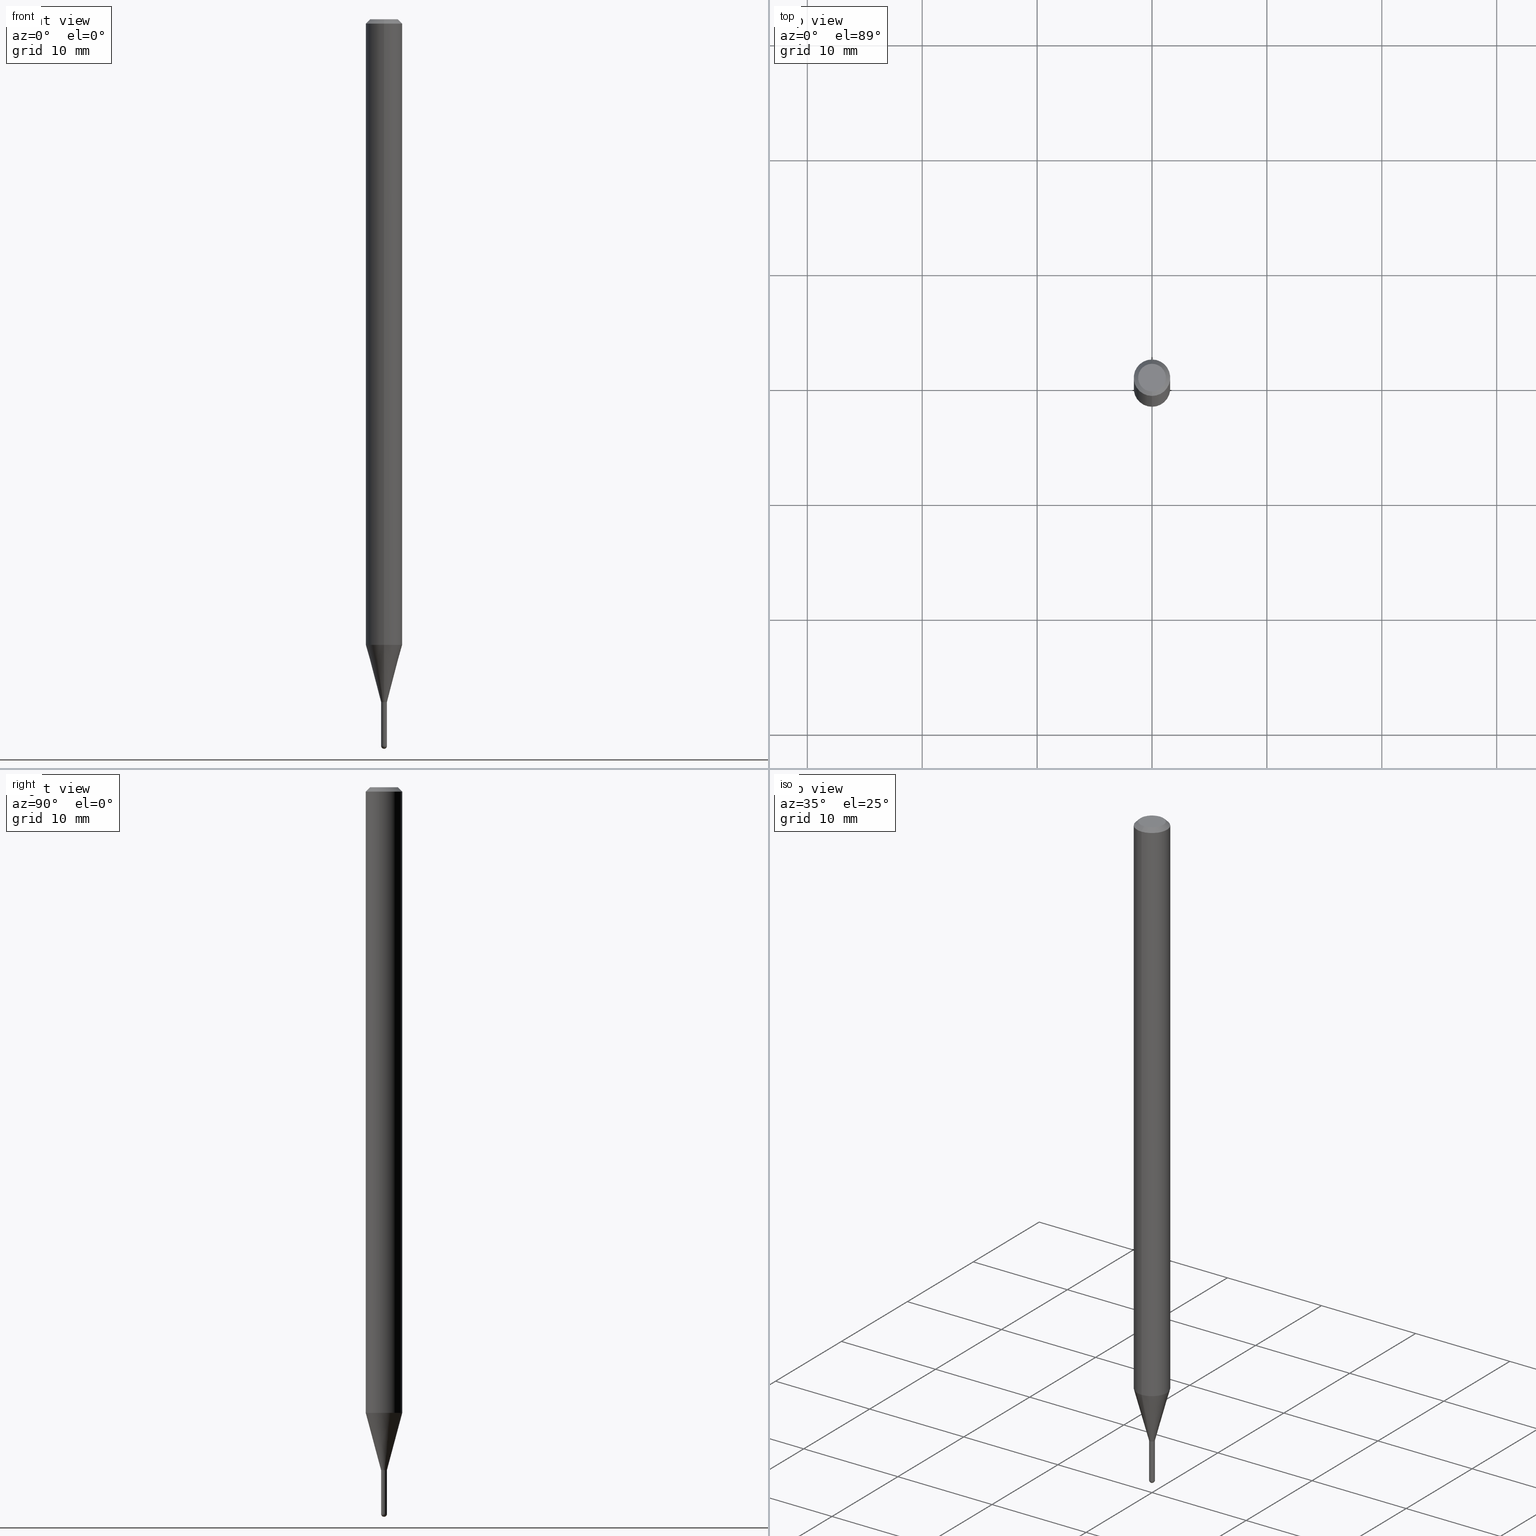
[diagram: canonical four-view strip — front | top / right | iso, engineering-drawing reading convention]
A machine part, canonical four-view strip (front | top / right | iso — engineering-drawing reading convention). The complete STEP part file that produces these views, byte-faithful:
ISO-10303-21;
HEADER;
FILE_DESCRIPTION (( 'STEP AP203' ),
    '1' );
FILE_NAME ('04484.STEP',
    '2024-03-08T20:00:20',
    ( '' ),
    ( '' ),
    'SwSTEP 2.0',
    'SolidWorks 2023',
    '' );
FILE_SCHEMA (( 'CONFIG_CONTROL_DESIGN' ));
ENDSEC;

DATA;
#1 = CARTESIAN_POINT ( 'NONE',  ( 5.722546731419643445E-29, -8.169851918247868605E-15, -2.340000000000000302 ) ) ;
#2 = EDGE_CURVE ( 'NONE', #56, #166, #46, .T. ) ;
#3 = PERSON_AND_ORGANIZATION_ROLE ( 'design_owner' ) ;
#4 = AXIS2_PLACEMENT_3D ( 'NONE', #208, #135, #285 ) ;
#5 = ORGANIZATION ( 'UNSPECIFIED', 'UNSPECIFIED', '' ) ;
#6 = ORIENTED_EDGE ( 'NONE', *, *, #201, .F. ) ;
#7 = DIRECTION ( 'NONE',  ( -2.445532791204975206E-29, 3.491389708652934978E-15, 1.000000000000000000 ) ) ;
#8 = APPROVAL_ROLE ( '' ) ;
#9 = DIRECTION ( 'NONE',  ( -2.445532791204975206E-29, 3.491389708652934978E-15, 1.000000000000000000 ) ) ;
#10 = EDGE_CURVE ( 'NONE', #462, #264, #302, .T. ) ;
#11 = ORIENTED_EDGE ( 'NONE', *, *, #429, .F. ) ;
#12 = EDGE_LOOP ( 'NONE', ( #299, #404, #446, #424 ) ) ;
#13 = ORIENTED_EDGE ( 'NONE', *, *, #95, .T. ) ;
#14 = CALENDAR_DATE ( 2024, 8, 3 ) ;
#15 = EDGE_LOOP ( 'NONE', ( #163, #281, #64, #449 ) ) ;
#16 = CIRCLE ( 'NONE', #311, 0.01000000000000019623 ) ;
#17 = AXIS2_PLACEMENT_3D ( 'NONE', #139, #171, #286 ) ;
#18 = PERSON_AND_ORGANIZATION ( #470, #5 ) ;
#19 = ORIENTED_EDGE ( 'NONE', *, *, #201, .T. ) ;
#20 = DIRECTION ( 'NONE',  ( -2.445532791204975486E-29, 3.491389708652934978E-15, 1.000000000000000000 ) ) ;
#21 = ORIENTED_EDGE ( 'NONE', *, *, #27, .T. ) ;
#22 = CARTESIAN_POINT ( 'NONE',  ( 0.01000000000000000021, -6.982962677686265724E-17, 4.876176775795935968E-31 ) ) ;
#23 = EDGE_CURVE ( 'NONE', #94, #158, #123, .T. ) ;
#24 = FACE_OUTER_BOUND ( 'NONE', #493, .T. ) ;
#25 = CARTESIAN_POINT ( 'NONE',  ( 4.440892098501148782E-16, 0.06249999999999250599, -2.144067332602639375 ) ) ;
#26 = ORIENTED_EDGE ( 'NONE', *, *, #277, .F. ) ;
#27 = EDGE_CURVE ( 'NONE', #339, #264, #116, .T. ) ;
#28 = LINE ( 'NONE', #115, #121 ) ;
#29 = DIRECTION ( 'NONE',  ( 1.000000000000000000, -6.982962677686235945E-15, 0.000000000000000000 ) ) ;
#30 = AXIS2_PLACEMENT_3D ( 'NONE', #1, #7, #259 ) ;
#31 = DIRECTION ( 'NONE',  ( -2.445532791204975486E-29, 3.491389708652934978E-15, 1.000000000000000000 ) ) ;
#32 = EDGE_CURVE ( 'NONE', #108, #483, #168, .T. ) ;
#33 = DIRECTION ( 'NONE',  ( -1.807323732225378654E-15, -0.2588190451025251249, 0.9659258262890670910 ) ) ;
#34 = ORIENTED_EDGE ( 'NONE', *, *, #505, .T. ) ;
#35 = EDGE_LOOP ( 'NONE', ( #265, #368, #455, #375 ) ) ;
#36 = CIRCLE ( 'NONE', #207, 0.009499999999999998029 ) ;
#37 = CIRCLE ( 'NONE', #162, 0.06250000000000000000 ) ;
#38 = EDGE_CURVE ( 'NONE', #94, #148, #120, .T. ) ;
#39 = DIRECTION ( 'NONE',  ( -6.982962677686265922E-15, -1.000000000000000000, 3.491389708652935372E-15 ) ) ;
#40 = DIRECTION ( 'NONE',  ( -6.982962677686266711E-15, -1.000000000000000000, 3.491389708652935372E-15 ) ) ;
#41 = FACE_OUTER_BOUND ( 'NONE', #384, .T. ) ;
#42 = AXIS2_PLACEMENT_3D ( 'NONE', #249, #176, #431 ) ;
#43 = AXIS2_PLACEMENT_3D ( 'NONE', #283, #365, #427 ) ;
#44 = CARTESIAN_POINT ( 'NONE',  ( -4.364351673553393088E-16, -0.06250000000000749401, -2.144067332602638931 ) ) ;
#45 = ADVANCED_FACE ( 'NONE', ( #202 ), #447, .T. ) ;
#46 = CIRCLE ( 'NONE', #238, 0.01000000000000008521 ) ;
#47 = DIRECTION ( 'NONE',  ( 4.937700262164548042E-15, 0.7071067811865451302, -0.7071067811865499042 ) ) ;
#48 = LINE ( 'NONE', #467, #160 ) ;
#49 = PLANE ( 'NONE',  #30 ) ;
#50 = CARTESIAN_POINT ( 'NONE',  ( -3.773273898774340269E-16, -0.04749999999999999362, 1.003364246745831889E-16 ) ) ;
#51 = ORIENTED_EDGE ( 'NONE', *, *, #85, .T. ) ;
#52 = DIRECTION ( 'NONE',  ( -6.982962677686266711E-15, -1.000000000000000000, 3.491389708652935372E-15 ) ) ;
#53 = CARTESIAN_POINT ( 'NONE',  ( -6.633814543796229745E-17, -0.009500000000008168577, -2.339999999999999858 ) ) ;
#54 = PERSON_AND_ORGANIZATION ( #470, #5 ) ;
#55 = CIRCLE ( 'NONE', #131, 0.01000000000000000021 ) ;
#56 = VERTEX_POINT ( 'NONE', #287 ) ;
#57 = EDGE_LOOP ( 'NONE', ( #444, #122, #506, #376 ) ) ;
#58 = EDGE_CURVE ( 'NONE', #181, #359, #143, .T. ) ;
#59 = CARTESIAN_POINT ( 'NONE',  ( 5.722546731419643445E-29, -8.169851918247868605E-15, -2.340000000000000302 ) ) ;
#60 = DIRECTION ( 'NONE',  ( -6.982962677686265133E-15, -1.000000000000000000, 0.000000000000000000 ) ) ;
#61 = PRODUCT_DEFINITION_SHAPE ( 'NONE', 'NONE',  #482 ) ;
#62 = DATE_AND_TIME ( #14, #251 ) ;
#63 = ORIENTED_EDGE ( 'NONE', *, *, #361, .T. ) ;
#64 = ORIENTED_EDGE ( 'NONE', *, *, #190, .T. ) ;
#65 = CONICAL_SURFACE ( 'NONE', #475, 0.06250000000000000000, 0.7853981633974483900 ) ;
#66 = CC_DESIGN_PERSON_AND_ORGANIZATION_ASSIGNMENT ( #443, #93, ( #469 ) ) ;
#67 = DIRECTION ( 'NONE',  ( 1.000000000000000000, -6.982962677686235945E-15, 0.000000000000000000 ) ) ;
#68 = MANIFOLD_SOLID_BREP ( 'Body-Move/Copy2[2]', #99 ) ;
#69 = DIRECTION ( 'NONE',  ( 2.445532791204975486E-29, -3.491389708652934978E-15, -1.000000000000000000 ) ) ;
#70 = PLANE ( 'NONE',  #87 ) ;
#71 = CARTESIAN_POINT ( 'NONE',  ( 6.089217327400989947E-29, -8.693788533719431716E-15, -2.489999999999999769 ) ) ;
#72 = VECTOR ( 'NONE', #507, 39.37007874015748143 ) ;
#73 =( GEOMETRIC_REPRESENTATION_CONTEXT ( 3 ) GLOBAL_UNCERTAINTY_ASSIGNED_CONTEXT ( ( #344 ) ) GLOBAL_UNIT_ASSIGNED_CONTEXT ( ( #240, #243, #200 ) ) REPRESENTATION_CONTEXT ( 'NONE', 'WORKASPACE' ) );
#74 = AXIS2_PLACEMENT_3D ( 'NONE', #77, #466, #126 ) ;
#75 = DIRECTION ( 'NONE',  ( 1.000000000000000000, -6.982962677686265922E-15, 4.883557194083112340E-29 ) ) ;
#76 = CARTESIAN_POINT ( 'NONE',  ( 5.722546731419642324E-29, -8.169851918247867028E-15, -2.339999999999999858 ) ) ;
#77 = CARTESIAN_POINT ( 'NONE',  ( 3.668299186807479747E-31, -5.237084562979425566E-17, -0.01500000000000006710 ) ) ;
#78 = CARTESIAN_POINT ( 'NONE',  ( 0.000000000000000000, 0.000000000000000000, 0.000000000000000000 ) ) ;
#79 = CONICAL_SURFACE ( 'NONE', #362, 0.009499999999999998029, 0.7853981633980202659 ) ;
#80 = CARTESIAN_POINT ( 'NONE',  ( 0.01000000000000000021, -8.239895959669823433E-15, -2.340000000000000302 ) ) ;
#81 = FACE_OUTER_BOUND ( 'NONE', #157, .T. ) ;
#82 = EDGE_CURVE ( 'NONE', #147, #223, #380, .T. ) ;
#83 = ORIENTED_EDGE ( 'NONE', *, *, #429, .T. ) ;
#84 = DIRECTION ( 'NONE',  ( -4.937700262167370586E-15, -0.7071067811869493624, 0.7071067811861454500 ) ) ;
#85 = EDGE_CURVE ( 'NONE', #226, #148, #340, .T. ) ;
#86 = DIRECTION ( 'NONE',  ( -6.982962677686265922E-15, -1.000000000000000000, 3.483106191921935554E-15 ) ) ;
#87 = AXIS2_PLACEMENT_3D ( 'NONE', #203, #235, #504 ) ;
#88 = CLOSED_SHELL ( 'NONE', ( #210, #422, #379, #178, #186 ) ) ;
#89 = FACE_OUTER_BOUND ( 'NONE', #35, .T. ) ;
#90 = CALENDAR_DATE ( 2024, 8, 3 ) ;
#91 = FACE_OUTER_BOUND ( 'NONE', #12, .T. ) ;
#92 = CARTESIAN_POINT ( 'NONE',  ( 6.089217327400989947E-29, -8.693788533719431716E-15, -2.489999999999999769 ) ) ;
#93 = PERSON_AND_ORGANIZATION_ROLE ( 'design_supplier' ) ;
#94 = VERTEX_POINT ( 'NONE', #289 ) ;
#95 = EDGE_CURVE ( 'NONE', #339, #489, #229, .T. ) ;
#96 = LINE ( 'NONE', #372, #318 ) ;
#97 = FACE_OUTER_BOUND ( 'NONE', #15, .T. ) ;
#98 = EDGE_LOOP ( 'NONE', ( #165, #63, #337, #310, #83 ) ) ;
#99 = CLOSED_SHELL ( 'NONE', ( #156, #373, #335, #474, #45, #133, #490, #351, #512, #104, #222, #307 ) ) ;
#100 = PERSON_AND_ORGANIZATION_ROLE ( 'creator' ) ;
#101 = FACE_OUTER_BOUND ( 'NONE', #153, .T. ) ;
#102 = ORIENTED_EDGE ( 'NONE', *, *, #216, .F. ) ;
#103 = APPROVAL_DATE_TIME ( #62, #245 ) ;
#104 = ADVANCED_FACE ( 'NONE', ( #401 ), #49, .F. ) ;
#105 = CARTESIAN_POINT ( 'NONE',  ( 3.840629472727447874E-16, 0.04749999999999999362, -2.313455976474456035E-16 ) ) ;
#106 = CARTESIAN_POINT ( 'NONE',  ( -0.01000000000000000021, -8.360873159730185055E-15, -2.340000000000000302 ) ) ;
#107 = ORIENTED_EDGE ( 'NONE', *, *, #326, .F. ) ;
#108 = VERTEX_POINT ( 'NONE', #179 ) ;
#109 = PRODUCT ( '04484', '04484', '', ( #225 ) ) ;
#110 = AXIS2_PLACEMENT_3D ( 'NONE', #76, #393, #159 ) ;
#111 = CC_DESIGN_APPROVAL ( #245, ( #469 ) ) ;
#112 = ORIENTED_EDGE ( 'NONE', *, *, #361, .F. ) ;
#113 = DIRECTION ( 'NONE',  ( -6.982962677686265922E-15, -1.000000000000000000, 3.491389708652934978E-15 ) ) ;
#114 = ORIENTED_EDGE ( 'NONE', *, *, #423, .T. ) ;
#115 = CARTESIAN_POINT ( 'NONE',  ( -4.364351673553916201E-16, -0.06250000000000000000, 2.182118567908084361E-16 ) ) ;
#116 = LINE ( 'NONE', #198, #189 ) ;
#117 = CC_DESIGN_PERSON_AND_ORGANIZATION_ASSIGNMENT ( #381, #100, ( #482 ) ) ;
#118 = CYLINDRICAL_SURFACE ( 'NONE', #263, 0.06250000000000000000 ) ;
#119 = CARTESIAN_POINT ( 'NONE',  ( 5.722546731419642324E-29, -8.169851918247867028E-15, -2.339999999999999858 ) ) ;
#120 = LINE ( 'NONE', #390, #231 ) ;
#121 = VECTOR ( 'NONE', #199, 39.37007874015748143 ) ;
#122 = ORIENTED_EDGE ( 'NONE', *, *, #216, .T. ) ;
#123 = CIRCLE ( 'NONE', #400, 0.009999999999999649794 ) ;
#124 = ORIENTED_EDGE ( 'NONE', *, *, #38, .F. ) ;
#125 = EDGE_CURVE ( 'NONE', #166, #491, #55, .T. ) ;
#126 = DIRECTION ( 'NONE',  ( -6.982962677686265922E-15, -1.000000000000000000, 3.483106191921935554E-15 ) ) ;
#127 = DIRECTION ( 'NONE',  ( -2.445532791204975486E-29, 3.491389708652934978E-15, 1.000000000000000000 ) ) ;
#128 = DIRECTION ( 'NONE',  ( -2.445532791204975486E-29, 3.491389708652934978E-15, 1.000000000000000000 ) ) ;
#129 = APPROVAL_DATE_TIME ( #273, #347 ) ;
#130 = CARTESIAN_POINT ( 'NONE',  ( 6.089217327400989947E-29, -8.693788533719431716E-15, -2.489999999999999769 ) ) ;
#131 = AXIS2_PLACEMENT_3D ( 'NONE', #130, #387, #275 ) ;
#132 = CARTESIAN_POINT ( 'NONE',  ( 2.575717417130899915E-16, 0.009999999999991479246, -2.340000000000000302 ) ) ;
#133 = ADVANCED_FACE ( 'NONE', ( #175 ), #500, .T. ) ;
#134 = DIRECTION ( 'NONE',  ( -1.000000000000000000, 7.105427357601001070E-15, -4.926315508542082329E-29 ) ) ;
#135 = DIRECTION ( 'NONE',  ( 2.438088387897960049E-29, -3.491481338843145188E-15, -1.000000000000000000 ) ) ;
#136 = DIRECTION ( 'NONE',  ( -2.445532791204975486E-29, 3.491389708652934978E-15, 1.000000000000000000 ) ) ;
#137 = ORIENTED_EDGE ( 'NONE', *, *, #499, .T. ) ;
#138 = EDGE_CURVE ( 'NONE', #56, #108, #177, .T. ) ;
#139 = CARTESIAN_POINT ( 'NONE',  ( 6.089217327400989947E-29, -8.693788533719431716E-15, -2.489999999999999769 ) ) ;
#140 = LINE ( 'NONE', #448, #458 ) ;
#141 = CIRCLE ( 'NONE', #110, 0.009499999999999998029 ) ;
#142 = DIRECTION ( 'NONE',  ( -6.982962677686265922E-15, -1.000000000000000000, 0.000000000000000000 ) ) ;
#143 = LINE ( 'NONE', #215, #436 ) ;
#144 = APPROVAL_STATUS ( 'not_yet_approved' ) ;
#145 = ORIENTED_EDGE ( 'NONE', *, *, #461, .T. ) ;
#146 = DIRECTION ( 'NONE',  ( 5.024295867790934632E-15, 0.7071067811869542474, 0.7071067811861405650 ) ) ;
#147 = VERTEX_POINT ( 'NONE', #80 ) ;
#148 = VERTEX_POINT ( 'NONE', #44 ) ;
#149 = DIRECTION ( 'NONE',  ( 0.000000000000000000, 0.000000000000000000, 1.000000000000000000 ) ) ;
#150 = ORIENTED_EDGE ( 'NONE', *, *, #32, .T. ) ;
#151 = LINE ( 'NONE', #22, #250 ) ;
#152 = EDGE_CURVE ( 'NONE', #158, #226, #282, .T. ) ;
#153 = EDGE_LOOP ( 'NONE', ( #102, #185, #473, #306 ) ) ;
#154 = CALENDAR_DATE ( 2024, 8, 3 ) ;
#155 = ORIENTED_EDGE ( 'NONE', *, *, #423, .F. ) ;
#156 = ADVANCED_FACE ( 'NONE', ( #91 ), #430, .F. ) ;
#157 = EDGE_LOOP ( 'NONE', ( #378, #34 ) ) ;
#158 = VERTEX_POINT ( 'NONE', #132 ) ;
#159 = DIRECTION ( 'NONE',  ( -6.982962677686265922E-15, -1.000000000000000000, 0.000000000000000000 ) ) ;
#160 = VECTOR ( 'NONE', #47, 39.37007874015748143 ) ;
#161 = CARTESIAN_POINT ( 'NONE',  ( -4.364351673553912750E-16, -0.06250000000000005551, -0.01499999999999984852 ) ) ;
#162 = AXIS2_PLACEMENT_3D ( 'NONE', #391, #20, #420 ) ;
#163 = ORIENTED_EDGE ( 'NONE', *, *, #314, .F. ) ;
#164 = CC_DESIGN_PERSON_AND_ORGANIZATION_ASSIGNMENT ( #267, #480, ( #469 ) ) ;
#165 = ORIENTED_EDGE ( 'NONE', *, *, #125, .T. ) ;
#166 = VERTEX_POINT ( 'NONE', #246 ) ;
#167 = ORIENTED_EDGE ( 'NONE', *, *, #95, .F. ) ;
#168 = CIRCLE ( 'NONE', #438, 0.01000000000000000021 ) ;
#169 = DIRECTION ( 'NONE',  ( 6.982962677686265133E-15, 1.000000000000000000, 0.000000000000000000 ) ) ;
#170 = CC_DESIGN_DATE_AND_TIME_ASSIGNMENT ( #261, #453, ( #482 ) ) ;
#171 = DIRECTION ( 'NONE',  ( -2.445468806185136597E-29, 3.491481338843145583E-15, 1.000000000000000000 ) ) ;
#172 = CARTESIAN_POINT ( 'NONE',  ( 3.668299186807479747E-31, -5.237084562979425566E-17, -0.01500000000000006710 ) ) ;
#173 = CIRCLE ( 'NONE', #477, 0.009999999999999649794 ) ;
#174 = CC_DESIGN_SECURITY_CLASSIFICATION ( #479, ( #469 ) ) ;
#175 = FACE_OUTER_BOUND ( 'NONE', #457, .T. ) ;
#176 = DIRECTION ( 'NONE',  ( -2.445532791204975486E-29, 3.491389708652934978E-15, 1.000000000000000000 ) ) ;
#177 = CIRCLE ( 'NONE', #349, 0.01000000000000008521 ) ;
#178 = ADVANCED_FACE ( 'NONE', ( #41 ), #219, .T. ) ;
#179 = CARTESIAN_POINT ( 'NONE',  ( -7.105427357594942569E-17, -0.01000000000000873801, -2.489999999999999769 ) ) ;
#180 = CARTESIAN_POINT ( 'NONE',  ( 4.440892098500625669E-16, 0.06250000000000000000, -2.182118567908084361E-16 ) ) ;
#181 = VERTEX_POINT ( 'NONE', #53 ) ;
#182 = ORIENTED_EDGE ( 'NONE', *, *, #38, .T. ) ;
#183 = APPLICATION_PROTOCOL_DEFINITION ( 'international standard', 'config_control_design', 1994, #295 ) ;
#184 = CARTESIAN_POINT ( 'NONE',  ( 7.105427357606838345E-17, 0.009999999999991994459, -2.339500000000000135 ) ) ;
#185 = ORIENTED_EDGE ( 'NONE', *, *, #345, .T. ) ;
#186 = ADVANCED_FACE ( 'NONE', ( #392 ), #509, .T. ) ;
#187 = AXIS2_PLACEMENT_3D ( 'NONE', #78, #209, #399 ) ;
#188 = APPROVAL_PERSON_ORGANIZATION ( #294, #245, #377 ) ;
#189 = VECTOR ( 'NONE', #353, 39.37007874015748143 ) ;
#190 = EDGE_CURVE ( 'NONE', #94, #359, #140, .T. ) ;
#191 = EDGE_LOOP ( 'NONE', ( #112, #19, #150, #498, #346 ) ) ;
#192 = PERSON_AND_ORGANIZATION ( #470, #5 ) ;
#193 = ORIENTED_EDGE ( 'NONE', *, *, #125, .F. ) ;
#194 = DIRECTION ( 'NONE',  ( -2.445532791204975486E-29, 3.491389708652934978E-15, 1.000000000000000000 ) ) ;
#195 = AXIS2_PLACEMENT_3D ( 'NONE', #440, #332, #481 ) ;
#196 = DESIGN_CONTEXT ( 'detailed design', #295, 'design' ) ;
#197 = AXIS2_PLACEMENT_3D ( 'NONE', #334, #149, #257 ) ;
#198 = CARTESIAN_POINT ( 'NONE',  ( -4.287811248607203282E-16, -0.06250000000000005551, -0.01499999999999984852 ) ) ;
#199 = DIRECTION ( 'NONE',  ( -2.445532791204975206E-29, 3.491389708652934978E-15, 1.000000000000000000 ) ) ;
#200 =( NAMED_UNIT ( * ) SI_UNIT ( $, .STERADIAN. ) SOLID_ANGLE_UNIT ( ) );
#201 = EDGE_CURVE ( 'NONE', #491, #108, #415, .T. ) ;
#202 = FACE_OUTER_BOUND ( 'NONE', #313, .T. ) ;
#203 = CARTESIAN_POINT ( 'NONE',  ( 3.316907271900976096E-16, 0.04749999999999999362, -1.985933044042299937E-16 ) ) ;
#204 = EDGE_CURVE ( 'NONE', #483, #147, #151, .T. ) ;
#205 = EDGE_LOOP ( 'NONE', ( #167, #21, #145, #503 ) ) ;
#206 = FACE_OUTER_BOUND ( 'NONE', #57, .T. ) ;
#207 = AXIS2_PLACEMENT_3D ( 'NONE', #298, #445, #488 ) ;
#208 = CARTESIAN_POINT ( 'NONE',  ( 6.982962677691987431E-17, 0.009999999999991829661, -2.340000000000000302 ) ) ;
#209 = DIRECTION ( 'NONE',  ( -2.445468806185136597E-29, 3.491481338843145583E-15, 1.000000000000000000 ) ) ;
#210 = ADVANCED_FACE ( 'NONE', ( #233 ), #309, .T. ) ;
#211 = DIRECTION ( 'NONE',  ( -6.982962677686265922E-15, -1.000000000000000000, 0.000000000000000000 ) ) ;
#212 = DIRECTION ( 'NONE',  ( -2.445468806185136597E-29, 3.491481338843145583E-15, 1.000000000000000000 ) ) ;
#213 = DIRECTION ( 'NONE',  ( -2.445532791204975206E-29, 3.491389708652934978E-15, 1.000000000000000000 ) ) ;
#214 = FACE_OUTER_BOUND ( 'NONE', #228, .T. ) ;
#215 = CARTESIAN_POINT ( 'NONE',  ( -6.633814543796229745E-17, -0.009500000000008168577, -2.339999999999999858 ) ) ;
#216 = EDGE_CURVE ( 'NONE', #296, #258, #329, .T. ) ;
#217 = DATE_TIME_ROLE ( 'classification_date' ) ;
#218 = ORIENTED_EDGE ( 'NONE', *, *, #152, .T. ) ;
#219 = SPHERICAL_SURFACE ( 'NONE', #330, 0.01000000000000008521 ) ;
#220 = VECTOR ( 'NONE', #441, 39.37007874015748143 ) ;
#221 = ORIENTED_EDGE ( 'NONE', *, *, #32, .F. ) ;
#222 = ADVANCED_FACE ( 'NONE', ( #101 ), #369, .T. ) ;
#223 = VERTEX_POINT ( 'NONE', #106 ) ;
#224 = DIRECTION ( 'NONE',  ( -2.445468806185136597E-29, 3.491481338843145583E-15, 1.000000000000000000 ) ) ;
#225 = MECHANICAL_CONTEXT ( 'NONE', #280, 'mechanical' ) ;
#226 = VERTEX_POINT ( 'NONE', #25 ) ;
#227 = EDGE_LOOP ( 'NONE', ( #333, #155, #269, #409 ) ) ;
#228 = EDGE_LOOP ( 'NONE', ( #383, #234, #6, #193 ) ) ;
#229 = CIRCLE ( 'NONE', #270, 0.04749999999999999362 ) ;
#230 = CC_DESIGN_APPROVAL ( #347, ( #479 ) ) ;
#231 = VECTOR ( 'NONE', #33, 39.37007874015748854 ) ;
#232 = DIRECTION ( 'NONE',  ( -2.445532791204975486E-29, 3.491389708652934978E-15, 1.000000000000000000 ) ) ;
#233 = FACE_OUTER_BOUND ( 'NONE', #98, .T. ) ;
#234 = ORIENTED_EDGE ( 'NONE', *, *, #138, .T. ) ;
#235 = DIRECTION ( 'NONE',  ( 2.445532791204975206E-29, -3.491389708652934978E-15, -1.000000000000000000 ) ) ;
#236 = LOCAL_TIME ( 15, 0, 20.00000000000000000, #297 ) ;
#237 = LINE ( 'NONE', #463, #72 ) ;
#238 = AXIS2_PLACEMENT_3D ( 'NONE', #388, #75, #169 ) ;
#239 = EDGE_CURVE ( 'NONE', #258, #359, #16, .T. ) ;
#240 =( CONVERSION_BASED_UNIT ( 'INCH', #248 ) LENGTH_UNIT ( ) NAMED_UNIT ( #417 ) );
#241 = VECTOR ( 'NONE', #408, 39.37007874015748143 ) ;
#242 = CARTESIAN_POINT ( 'NONE',  ( 5.722546731419643445E-29, -8.169851918247868605E-15, -2.340000000000000302 ) ) ;
#243 =( NAMED_UNIT ( * ) PLANE_ANGLE_UNIT ( ) SI_UNIT ( $, .RADIAN. ) );
#244 = DIRECTION ( 'NONE',  ( -2.445532791204975486E-29, 3.491389708652934978E-15, 1.000000000000000000 ) ) ;
#245 = APPROVAL ( #144, 'UNSPECIFIED' ) ;
#246 = CARTESIAN_POINT ( 'NONE',  ( 6.982962677692383094E-17, 0.009999999999991347407, -2.489999999999999769 ) ) ;
#247 = DIRECTION ( 'NONE',  ( -1.000000000000000000, 6.982962677686265922E-15, -4.883557194083113462E-29 ) ) ;
#248 = LENGTH_MEASURE_WITH_UNIT ( LENGTH_MEASURE( 0.02539999999999999897 ), #305 );
#249 = CARTESIAN_POINT ( 'NONE',  ( 5.722546731419643445E-29, -8.169851918247868605E-15, -2.340000000000000302 ) ) ;
#250 = VECTOR ( 'NONE', #352, 39.37007874015748143 ) ;
#251 = LOCAL_TIME ( 15, 0, 20.00000000000000000, #291 ) ;
#252 = APPLICATION_PROTOCOL_DEFINITION ( 'international standard', 'config_control_design', 1994, #280 ) ;
#253 = CARTESIAN_POINT ( 'NONE',  ( 3.668299186807479747E-31, -5.237084562979425566E-17, -0.01500000000000006710 ) ) ;
#254 = DIRECTION ( 'NONE',  ( -6.982962677686265922E-15, -1.000000000000000000, 3.491389708652934978E-15 ) ) ;
#255 = CYLINDRICAL_SURFACE ( 'NONE', #511, 0.06250000000000000000 ) ;
#256 = DIRECTION ( 'NONE',  ( -2.445532791204975486E-29, 3.491389708652934978E-15, 1.000000000000000000 ) ) ;
#257 = DIRECTION ( 'NONE',  ( 1.000000000000000000, 0.000000000000000000, 0.000000000000000000 ) ) ;
#258 = VERTEX_POINT ( 'NONE', #184 ) ;
#259 = DIRECTION ( 'NONE',  ( -6.982962677686265922E-15, -1.000000000000000000, 3.491389708652934978E-15 ) ) ;
#260 = DIRECTION ( 'NONE',  ( -2.445468806185136597E-29, 3.491481338843145583E-15, 1.000000000000000000 ) ) ;
#261 = DATE_AND_TIME ( #154, #322 ) ;
#262 = AXIS2_PLACEMENT_3D ( 'NONE', #426, #244, #39 ) ;
#263 = AXIS2_PLACEMENT_3D ( 'NONE', #274, #31, #113 ) ;
#264 = VERTEX_POINT ( 'NONE', #161 ) ;
#265 = ORIENTED_EDGE ( 'NONE', *, *, #508, .T. ) ;
#266 = COORDINATED_UNIVERSAL_TIME_OFFSET ( 5, 0, .BEHIND. ) ;
#267 = PERSON_AND_ORGANIZATION ( #470, #5 ) ;
#268 = CARTESIAN_POINT ( 'NONE',  ( 6.927791673666766302E-17, 0.009499999999991829217, -2.339999999999999858 ) ) ;
#269 = ORIENTED_EDGE ( 'NONE', *, *, #397, .T. ) ;
#270 = AXIS2_PLACEMENT_3D ( 'NONE', #437, #256, #52 ) ;
#271 = CIRCLE ( 'NONE', #342, 0.06250000000000000000 ) ;
#272 = CARTESIAN_POINT ( 'NONE',  ( 5.722397006473220130E-29, -8.170066332892960135E-15, -2.340000000000000302 ) ) ;
#273 = DATE_AND_TIME ( #459, #236 ) ;
#274 = CARTESIAN_POINT ( 'NONE',  ( 0.000000000000000000, 0.000000000000000000, 0.000000000000000000 ) ) ;
#275 = DIRECTION ( 'NONE',  ( 1.000000000000000000, -6.982962677686235945E-15, 0.000000000000000000 ) ) ;
#276 = DIRECTION ( 'NONE',  ( -2.445468806185136597E-29, 3.491481338843145583E-15, 1.000000000000000000 ) ) ;
#277 = EDGE_CURVE ( 'NONE', #181, #296, #36, .T. ) ;
#278 = AXIS2_PLACEMENT_3D ( 'NONE', #395, #212, #363 ) ;
#279 = CIRCLE ( 'NONE', #17, 0.01000000000000000021 ) ;
#280 = APPLICATION_CONTEXT ( 'configuration controlled 3d designs of mechanical parts and assemblies' ) ;
#281 = ORIENTED_EDGE ( 'NONE', *, *, #23, .F. ) ;
#282 = LINE ( 'NONE', #292, #220 ) ;
#283 = CARTESIAN_POINT ( 'NONE',  ( 5.721323965024041261E-29, -8.168106223393542357E-15, -2.339500000000000135 ) ) ;
#284 = LOCAL_TIME ( 15, 0, 20.00000000000000000, #439 ) ;
#285 = DIRECTION ( 'NONE',  ( -1.000000000000000000, 6.982962677686265922E-15, -4.876176775795935793E-29 ) ) ;
#286 = DIRECTION ( 'NONE',  ( 1.000000000000000000, -6.982962677686235945E-15, 0.000000000000000000 ) ) ;
#287 = CARTESIAN_POINT ( 'NONE',  ( 6.113244432318252078E-29, -8.729315670507435968E-15, -2.500000000000000000 ) ) ;
#288 = CARTESIAN_POINT ( 'NONE',  ( 4.440892098501153712E-16, 0.06249999999999995143, -0.01500000000000028394 ) ) ;
#289 = CARTESIAN_POINT ( 'NONE',  ( -6.982962677680298731E-17, -0.01000000000000782034, -2.340000000000000302 ) ) ;
#290 = AXIS2_PLACEMENT_3D ( 'NONE', #476, #127, #142 ) ;
#291 = COORDINATED_UNIVERSAL_TIME_OFFSET ( 5, 0, .BEHIND. ) ;
#292 = CARTESIAN_POINT ( 'NONE',  ( 7.105427357606474729E-17, 0.009999999999991479246, -2.340000000000000302 ) ) ;
#293 = CARTESIAN_POINT ( 'NONE',  ( 6.088362161111811119E-29, -8.695013180518578499E-15, -2.489999999999999769 ) ) ;
#294 = PERSON_AND_ORGANIZATION ( #470, #5 ) ;
#295 = APPLICATION_CONTEXT ( 'configuration controlled 3d designs of mechanical parts and assemblies' ) ;
#296 = VERTEX_POINT ( 'NONE', #268 ) ;
#297 = COORDINATED_UNIVERSAL_TIME_OFFSET ( 5, 0, .BEHIND. ) ;
#298 = CARTESIAN_POINT ( 'NONE',  ( 5.722546731419642324E-29, -8.169851918247867028E-15, -2.339999999999999858 ) ) ;
#299 = ORIENTED_EDGE ( 'NONE', *, *, #328, .F. ) ;
#300 = AXIS2_PLACEMENT_3D ( 'NONE', #303, #69, #502 ) ;
#301 = DATE_AND_TIME ( #486, #465 ) ;
#302 = CIRCLE ( 'NONE', #74, 0.06250000000000000000 ) ;
#303 = CARTESIAN_POINT ( 'NONE',  ( 3.668299186807479747E-31, -5.237084562979425566E-17, -0.01500000000000006710 ) ) ;
#304 = PERSON_AND_ORGANIZATION ( #470, #5 ) ;
#305 =( LENGTH_UNIT ( ) NAMED_UNIT ( * ) SI_UNIT ( $, .METRE. ) );
#306 = ORIENTED_EDGE ( 'NONE', *, *, #239, .F. ) ;
#307 = ADVANCED_FACE ( 'NONE', ( #97 ), #414, .F. ) ;
#308 = ORIENTED_EDGE ( 'NONE', *, *, #508, .F. ) ;
#309 = CYLINDRICAL_SURFACE ( 'NONE', #355, 0.01000000000000000021 ) ;
#310 = ORIENTED_EDGE ( 'NONE', *, *, #204, .F. ) ;
#311 = AXIS2_PLACEMENT_3D ( 'NONE', #374, #194, #60 ) ;
#312 = CC_DESIGN_PERSON_AND_ORGANIZATION_ASSIGNMENT ( #192, #3, ( #109 ) ) ;
#313 = EDGE_LOOP ( 'NONE', ( #485, #218, #308, #124 ) ) ;
#314 = EDGE_CURVE ( 'NONE', #158, #258, #96, .T. ) ;
#315 = CARTESIAN_POINT ( 'NONE',  ( -6.982962677680705488E-17, -0.01000000000000839800, -2.339500000000000135 ) ) ;
#316 = DIRECTION ( 'NONE',  ( 1.000000000000000000, -6.982962677686235945E-15, 0.000000000000000000 ) ) ;
#317 = PRODUCT_RELATED_PRODUCT_CATEGORY ( 'detail', '', ( #109 ) ) ;
#318 = VECTOR ( 'NONE', #9, 39.37007874015748143 ) ;
#319 = AXIS2_PLACEMENT_3D ( 'NONE', #272, #419, #67 ) ;
#320 = CC_DESIGN_DATE_AND_TIME_ASSIGNMENT ( #403, #217, ( #479 ) ) ;
#321 = AXIS2_PLACEMENT_3D ( 'NONE', #367, #136, #472 ) ;
#322 = LOCAL_TIME ( 15, 0, 20.00000000000000000, #266 ) ;
#323 = DIRECTION ( 'NONE',  ( 6.982962677686265922E-15, 1.000000000000000000, 0.000000000000000000 ) ) ;
#324 = CARTESIAN_POINT ( 'NONE',  ( 6.088362161111811119E-29, -8.695013180518578499E-15, -2.489999999999999769 ) ) ;
#325 = PLANE ( 'NONE',  #4 ) ;
#326 = EDGE_CURVE ( 'NONE', #226, #462, #327, .T. ) ;
#327 = LINE ( 'NONE', #180, #241 ) ;
#328 = EDGE_CURVE ( 'NONE', #158, #94, #173, .T. ) ;
#329 = LINE ( 'NONE', #451, #406 ) ;
#330 = AXIS2_PLACEMENT_3D ( 'NONE', #484, #497, #323 ) ;
#331 = CIRCLE ( 'NONE', #43, 0.01000000000000019623 ) ;
#332 = DIRECTION ( 'NONE',  ( -2.445532791204975486E-29, 3.491389708652934978E-15, 1.000000000000000000 ) ) ;
#333 = ORIENTED_EDGE ( 'NONE', *, *, #27, .F. ) ;
#334 = CARTESIAN_POINT ( 'NONE',  ( 0.000000000000000000, 0.000000000000000000, 0.000000000000000000 ) ) ;
#335 = ADVANCED_FACE ( 'NONE', ( #435 ), #65, .T. ) ;
#336 = ORIENTED_EDGE ( 'NONE', *, *, #2, .T. ) ;
#337 = ORIENTED_EDGE ( 'NONE', *, *, #82, .F. ) ;
#338 = COORDINATED_UNIVERSAL_TIME_OFFSET ( 5, 0, .BEHIND. ) ;
#339 = VERTEX_POINT ( 'NONE', #50 ) ;
#340 = CIRCLE ( 'NONE', #321, 0.06250000000000000000 ) ;
#341 = EDGE_LOOP ( 'NONE', ( #114, #13 ) ) ;
#342 = AXIS2_PLACEMENT_3D ( 'NONE', #172, #434, #86 ) ;
#343 = DIRECTION ( 'NONE',  ( -2.445532791204975486E-29, 3.491389708652934978E-15, 1.000000000000000000 ) ) ;
#344 = UNCERTAINTY_MEASURE_WITH_UNIT (LENGTH_MEASURE( 1.000000000000000082E-05 ), #240, 'distance_accuracy_value', 'NONE');
#345 = EDGE_CURVE ( 'NONE', #296, #181, #141, .T. ) ;
#346 = ORIENTED_EDGE ( 'NONE', *, *, #505, .F. ) ;
#347 = APPROVAL ( #371, 'UNSPECIFIED' ) ;
#348 = DIRECTION ( 'NONE',  ( -2.445532791204975486E-29, 3.491389708652934978E-15, 1.000000000000000000 ) ) ;
#349 = AXIS2_PLACEMENT_3D ( 'NONE', #324, #134, #433 ) ;
#350 = APPROVAL_PERSON_ORGANIZATION ( #54, #347, #8 ) ;
#351 = ADVANCED_FACE ( 'NONE', ( #396 ), #510, .T. ) ;
#352 = DIRECTION ( 'NONE',  ( -2.445468806185136877E-29, 3.491481338843145188E-15, 1.000000000000000000 ) ) ;
#353 = DIRECTION ( 'NONE',  ( -4.851104656540964275E-15, -0.7071067811865500152, -0.7071067811865450192 ) ) ;
#354 = DIRECTION ( 'NONE',  ( 6.982962677686265922E-15, 1.000000000000000000, -3.483106191921935554E-15 ) ) ;
#355 = AXIS2_PLACEMENT_3D ( 'NONE', #501, #224, #364 ) ;
#356 = ORIENTED_EDGE ( 'NONE', *, *, #345, .F. ) ;
#357 = CARTESIAN_POINT ( 'NONE',  ( 1.601936142268898587E-45, -2.287020391282920608E-31, -6.550458648643120731E-17 ) ) ;
#358 = DIRECTION ( 'NONE',  ( -6.982962677686265922E-15, -1.000000000000000000, 0.000000000000000000 ) ) ;
#359 = VERTEX_POINT ( 'NONE', #315 ) ;
#360 = DIRECTION ( 'NONE',  ( 6.982962677686265922E-15, 1.000000000000000000, 0.000000000000000000 ) ) ;
#361 = EDGE_CURVE ( 'NONE', #491, #223, #237, .T. ) ;
#362 = AXIS2_PLACEMENT_3D ( 'NONE', #119, #348, #211 ) ;
#363 = DIRECTION ( 'NONE',  ( 1.000000000000000000, -6.982962677686235945E-15, 0.000000000000000000 ) ) ;
#364 = DIRECTION ( 'NONE',  ( 1.000000000000000000, -6.982962677686265922E-15, 4.876176775795935793E-29 ) ) ;
#365 = DIRECTION ( 'NONE',  ( -2.445532791204975486E-29, 3.491389708652934978E-15, 1.000000000000000000 ) ) ;
#366 = CARTESIAN_POINT ( 'NONE',  ( 0.000000000000000000, 0.000000000000000000, 0.000000000000000000 ) ) ;
#367 = CARTESIAN_POINT ( 'NONE',  ( 5.243386968431138412E-29, -7.485774619707804452E-15, -2.144067332602638931 ) ) ;
#368 = ORIENTED_EDGE ( 'NONE', *, *, #326, .T. ) ;
#369 = CONICAL_SURFACE ( 'NONE', #468, 0.009499999999999998029, 0.7853981633980202659 ) ;
#370 = CIRCLE ( 'NONE', #416, 0.04749999999999999362 ) ;
#371 = APPROVAL_STATUS ( 'not_yet_approved' ) ;
#372 = CARTESIAN_POINT ( 'NONE',  ( 7.105427357600945307E-17, 0.009999999999999923880, -3.491389708652908674E-17 ) ) ;
#373 = ADVANCED_FACE ( 'NONE', ( #206 ), #79, .T. ) ;
#374 = CARTESIAN_POINT ( 'NONE',  ( 5.721323965024041261E-29, -8.168106223393542357E-15, -2.339500000000000135 ) ) ;
#375 = ORIENTED_EDGE ( 'NONE', *, *, #499, .F. ) ;
#376 = ORIENTED_EDGE ( 'NONE', *, *, #58, .F. ) ;
#377 = APPROVAL_ROLE ( '' ) ;
#378 = ORIENTED_EDGE ( 'NONE', *, *, #82, .T. ) ;
#379 = ADVANCED_FACE ( 'NONE', ( #81 ), #325, .F. ) ;
#380 = CIRCLE ( 'NONE', #278, 0.01000000000000000021 ) ;
#381 = PERSON_AND_ORGANIZATION ( #470, #5 ) ;
#382 = CC_DESIGN_APPROVAL ( #413, ( #482 ) ) ;
#383 = ORIENTED_EDGE ( 'NONE', *, *, #2, .F. ) ;
#384 = EDGE_LOOP ( 'NONE', ( #495, #336, #11, #221 ) ) ;
#385 = ORIENTED_EDGE ( 'NONE', *, *, #85, .F. ) ;
#386 = DIRECTION ( 'NONE',  ( -6.982962677686265922E-15, -1.000000000000000000, 0.000000000000000000 ) ) ;
#387 = DIRECTION ( 'NONE',  ( -2.445468806185136597E-29, 3.491481338843145583E-15, 1.000000000000000000 ) ) ;
#388 = CARTESIAN_POINT ( 'NONE',  ( 6.088362161111811119E-29, -8.695013180518578499E-15, -2.489999999999999769 ) ) ;
#389 = CIRCLE ( 'NONE', #319, 0.01000000000000000021 ) ;
#390 = CARTESIAN_POINT ( 'NONE',  ( -6.982962677680298731E-17, -0.01000000000000782034, -2.340000000000000302 ) ) ;
#391 = CARTESIAN_POINT ( 'NONE',  ( 5.243386968431138412E-29, -7.485774619707804452E-15, -2.144067332602638931 ) ) ;
#392 = FACE_OUTER_BOUND ( 'NONE', #191, .T. ) ;
#393 = DIRECTION ( 'NONE',  ( -2.445532791204975486E-29, 3.491389708652934978E-15, 1.000000000000000000 ) ) ;
#394 = DIRECTION ( 'NONE',  ( -2.445532791204975486E-29, 3.491389708652934978E-15, 1.000000000000000000 ) ) ;
#395 = CARTESIAN_POINT ( 'NONE',  ( 5.722397006473220130E-29, -8.170066332892960135E-15, -2.340000000000000302 ) ) ;
#396 = FACE_OUTER_BOUND ( 'NONE', #227, .T. ) ;
#397 = EDGE_CURVE ( 'NONE', #489, #462, #48, .T. ) ;
#398 = APPROVAL_PERSON_ORGANIZATION ( #304, #413, #492 ) ;
#399 = DIRECTION ( 'NONE',  ( 1.000000000000000000, -6.982962677686265922E-15, 4.876176775795935793E-29 ) ) ;
#400 = AXIS2_PLACEMENT_3D ( 'NONE', #242, #394, #358 ) ;
#401 = FACE_OUTER_BOUND ( 'NONE', #487, .T. ) ;
#402 = MANIFOLD_SOLID_BREP ( 'Body-Move/Copy2[1]', #88 ) ;
#403 = DATE_AND_TIME ( #90, #284 ) ;
#404 = ORIENTED_EDGE ( 'NONE', *, *, #314, .T. ) ;
#405 = PERSON_AND_ORGANIZATION_ROLE ( 'classification_officer' ) ;
#406 = VECTOR ( 'NONE', #146, 39.37007874015748854 ) ;
#407 = CC_DESIGN_PERSON_AND_ORGANIZATION_ASSIGNMENT ( #18, #405, ( #479 ) ) ;
#408 = DIRECTION ( 'NONE',  ( -2.445532791204975206E-29, 3.491389708652934978E-15, 1.000000000000000000 ) ) ;
#409 = ORIENTED_EDGE ( 'NONE', *, *, #10, .T. ) ;
#410 = SECURITY_CLASSIFICATION_LEVEL ( 'unclassified' ) ;
#411 = ORIENTED_EDGE ( 'NONE', *, *, #152, .F. ) ;
#412 = FACE_OUTER_BOUND ( 'NONE', #341, .T. ) ;
#413 = APPROVAL ( #494, 'UNSPECIFIED' ) ;
#414 = CYLINDRICAL_SURFACE ( 'NONE', #195, 0.009999999999999923880 ) ;
#415 = CIRCLE ( 'NONE', #464, 0.01000000000000000021 ) ;
#416 = AXIS2_PLACEMENT_3D ( 'NONE', #357, #128, #40 ) ;
#417 = DIMENSIONAL_EXPONENTS ( 1.000000000000000000, 0.000000000000000000, 0.000000000000000000, 0.000000000000000000, 0.000000000000000000, 0.000000000000000000, 0.000000000000000000 ) ;
#418 = CARTESIAN_POINT ( 'NONE',  ( 0.01000000000000000021, -8.501757060083058435E-15, -2.489999999999999769 ) ) ;
#419 = DIRECTION ( 'NONE',  ( -2.445468806185136597E-29, 3.491481338843145583E-15, 1.000000000000000000 ) ) ;
#420 = DIRECTION ( 'NONE',  ( -6.982962677686265922E-15, -1.000000000000000000, 4.370956789862821150E-15 ) ) ;
#421 = DIRECTION ( 'NONE',  ( 2.445532791204975486E-29, -3.491389708652934978E-15, -1.000000000000000000 ) ) ;
#422 = ADVANCED_FACE ( 'NONE', ( #214 ), #478, .T. ) ;
#423 = EDGE_CURVE ( 'NONE', #489, #339, #370, .T. ) ;
#424 = ORIENTED_EDGE ( 'NONE', *, *, #190, .F. ) ;
#425 = AXIS2_PLACEMENT_3D ( 'NONE', #293, #247, #360 ) ;
#426 = CARTESIAN_POINT ( 'NONE',  ( 0.000000000000000000, 0.000000000000000000, 0.000000000000000000 ) ) ;
#427 = DIRECTION ( 'NONE',  ( -6.982962677686265133E-15, -1.000000000000000000, 0.000000000000000000 ) ) ;
#428 = SHAPE_DEFINITION_REPRESENTATION ( #61, #496 ) ;
#429 = EDGE_CURVE ( 'NONE', #483, #166, #279, .T. ) ;
#430 = CYLINDRICAL_SURFACE ( 'NONE', #262, 0.009999999999999923880 ) ;
#431 = DIRECTION ( 'NONE',  ( -6.982962677686265922E-15, -1.000000000000000000, 0.000000000000000000 ) ) ;
#432 = DIRECTION ( 'NONE',  ( -2.445532791204975486E-29, 3.491389708652934978E-15, 1.000000000000000000 ) ) ;
#433 = DIRECTION ( 'NONE',  ( -7.105427357601000281E-15, -1.000000000000000000, 0.000000000000000000 ) ) ;
#434 = DIRECTION ( 'NONE',  ( -2.445532791204975486E-29, 3.491389708652934978E-15, 1.000000000000000000 ) ) ;
#435 = FACE_OUTER_BOUND ( 'NONE', #205, .T. ) ;
#436 = VECTOR ( 'NONE', #84, 39.37007874015748854 ) ;
#437 = CARTESIAN_POINT ( 'NONE',  ( 1.601936142268898587E-45, -2.287020391282920608E-31, -6.550458648643120731E-17 ) ) ;
#438 = AXIS2_PLACEMENT_3D ( 'NONE', #71, #276, #316 ) ;
#439 = COORDINATED_UNIVERSAL_TIME_OFFSET ( 5, 0, .BEHIND. ) ;
#440 = CARTESIAN_POINT ( 'NONE',  ( 0.000000000000000000, 0.000000000000000000, 0.000000000000000000 ) ) ;
#441 = DIRECTION ( 'NONE',  ( 1.839019923739649619E-15, 0.2588190451025318972, 0.9659258262890653146 ) ) ;
#442 = EDGE_CURVE ( 'NONE', #359, #258, #331, .T. ) ;
#443 = PERSON_AND_ORGANIZATION ( #470, #5 ) ;
#444 = ORIENTED_EDGE ( 'NONE', *, *, #277, .T. ) ;
#445 = DIRECTION ( 'NONE',  ( -2.445532791204975486E-29, 3.491389708652934978E-15, 1.000000000000000000 ) ) ;
#446 = ORIENTED_EDGE ( 'NONE', *, *, #239, .T. ) ;
#447 = CONICAL_SURFACE ( 'NONE', #42, 0.009999999999999649794, 0.2617993877991574569 ) ;
#448 = CARTESIAN_POINT ( 'NONE',  ( -6.982962677686212723E-17, -0.009999999999999923880, 3.491389708652908674E-17 ) ) ;
#449 = ORIENTED_EDGE ( 'NONE', *, *, #442, .T. ) ;
#450 = APPROVAL_DATE_TIME ( #301, #413 ) ;
#451 = CARTESIAN_POINT ( 'NONE',  ( 6.750155989726672072E-17, 0.009499999999991829217, -2.339999999999999858 ) ) ;
#452 = ORIENTED_EDGE ( 'NONE', *, *, #10, .F. ) ;
#453 = DATE_TIME_ROLE ( 'creation_date' ) ;
#454 = CARTESIAN_POINT ( 'NONE',  ( 5.722546731419642324E-29, -8.169851918247867028E-15, -2.339999999999999858 ) ) ;
#455 = ORIENTED_EDGE ( 'NONE', *, *, #461, .F. ) ;
#456 = ORIENTED_EDGE ( 'NONE', *, *, #328, .T. ) ;
#457 = EDGE_LOOP ( 'NONE', ( #411, #456, #182, #385 ) ) ;
#458 = VECTOR ( 'NONE', #213, 39.37007874015748143 ) ;
#459 = CALENDAR_DATE ( 2024, 8, 3 ) ;
#460 = CARTESIAN_POINT ( 'NONE',  ( -0.01000000000000000021, -8.360873159730185055E-15, -2.489999999999999769 ) ) ;
#461 = EDGE_CURVE ( 'NONE', #264, #462, #271, .T. ) ;
#462 = VERTEX_POINT ( 'NONE', #288 ) ;
#463 = CARTESIAN_POINT ( 'NONE',  ( -0.01000000000000000021, 7.105427357601002007E-17, -4.918935090254906272E-31 ) ) ;
#464 = AXIS2_PLACEMENT_3D ( 'NONE', #92, #260, #29 ) ;
#465 = LOCAL_TIME ( 15, 0, 20.00000000000000000, #338 ) ;
#466 = DIRECTION ( 'NONE',  ( -2.445532791204975486E-29, 3.491389708652934978E-15, 1.000000000000000000 ) ) ;
#467 = CARTESIAN_POINT ( 'NONE',  ( 4.364351673553919652E-16, 0.06249999999999995143, -0.01500000000000028394 ) ) ;
#468 = AXIS2_PLACEMENT_3D ( 'NONE', #454, #232, #386 ) ;
#469 = PRODUCT_DEFINITION_FORMATION_WITH_SPECIFIED_SOURCE ( 'ANY', '', #109, .NOT_KNOWN. ) ;
#470 = PERSON ( 'UNSPECIFIED', 'UNSPECIFIED', 'UNSPECIFIED', ('UNSPECIFIED'), ('UNSPECIFIED'), ('UNSPECIFIED') ) ;
#471 = DIRECTION ( 'NONE',  ( -6.982962677686265922E-15, -1.000000000000000000, 0.000000000000000000 ) ) ;
#472 = DIRECTION ( 'NONE',  ( -6.982962677686265922E-15, -1.000000000000000000, 4.370956789862821150E-15 ) ) ;
#473 = ORIENTED_EDGE ( 'NONE', *, *, #58, .T. ) ;
#474 = ADVANCED_FACE ( 'NONE', ( #89 ), #255, .T. ) ;
#475 = AXIS2_PLACEMENT_3D ( 'NONE', #253, #421, #354 ) ;
#476 = CARTESIAN_POINT ( 'NONE',  ( 5.722546731419643445E-29, -8.169851918247868605E-15, -2.340000000000000302 ) ) ;
#477 = AXIS2_PLACEMENT_3D ( 'NONE', #59, #432, #471 ) ;
#478 = SPHERICAL_SURFACE ( 'NONE', #425, 0.01000000000000008521 ) ;
#479 = SECURITY_CLASSIFICATION ( '', '', #410 ) ;
#480 = PERSON_AND_ORGANIZATION_ROLE ( 'creator' ) ;
#481 = DIRECTION ( 'NONE',  ( -6.982962677686265922E-15, -1.000000000000000000, 3.491389708652935372E-15 ) ) ;
#482 = PRODUCT_DEFINITION ( 'UNKNOWN', '', #469, #196 ) ;
#483 = VERTEX_POINT ( 'NONE', #418 ) ;
#484 = CARTESIAN_POINT ( 'NONE',  ( 6.088362161111811119E-29, -8.695013180518578499E-15, -2.489999999999999769 ) ) ;
#485 = ORIENTED_EDGE ( 'NONE', *, *, #23, .T. ) ;
#486 = CALENDAR_DATE ( 2024, 8, 3 ) ;
#487 = EDGE_LOOP ( 'NONE', ( #26, #356 ) ) ;
#488 = DIRECTION ( 'NONE',  ( -6.982962677686265922E-15, -1.000000000000000000, 0.000000000000000000 ) ) ;
#489 = VERTEX_POINT ( 'NONE', #105 ) ;
#490 = ADVANCED_FACE ( 'NONE', ( #24 ), #118, .T. ) ;
#491 = VERTEX_POINT ( 'NONE', #460 ) ;
#492 = APPROVAL_ROLE ( '' ) ;
#493 = EDGE_LOOP ( 'NONE', ( #107, #51, #137, #452 ) ) ;
#494 = APPROVAL_STATUS ( 'not_yet_approved' ) ;
#495 = ORIENTED_EDGE ( 'NONE', *, *, #138, .F. ) ;
#496 = ADVANCED_BREP_SHAPE_REPRESENTATION ( '04484', ( #402, #68, #197 ), #73 ) ;
#497 = DIRECTION ( 'NONE',  ( -1.000000000000000000, 6.982962677686265922E-15, -4.883557194083113462E-29 ) ) ;
#498 = ORIENTED_EDGE ( 'NONE', *, *, #204, .T. ) ;
#499 = EDGE_CURVE ( 'NONE', #148, #264, #28, .T. ) ;
#500 = CONICAL_SURFACE ( 'NONE', #290, 0.009999999999999649794, 0.2617993877991574569 ) ;
#501 = CARTESIAN_POINT ( 'NONE',  ( 0.000000000000000000, 0.000000000000000000, 0.000000000000000000 ) ) ;
#502 = DIRECTION ( 'NONE',  ( 6.982962677686265922E-15, 1.000000000000000000, -3.483106191921935554E-15 ) ) ;
#503 = ORIENTED_EDGE ( 'NONE', *, *, #397, .F. ) ;
#504 = DIRECTION ( 'NONE',  ( 6.982962677686265922E-15, 1.000000000000000000, -3.491389708652934978E-15 ) ) ;
#505 = EDGE_CURVE ( 'NONE', #223, #147, #389, .T. ) ;
#506 = ORIENTED_EDGE ( 'NONE', *, *, #442, .F. ) ;
#507 = DIRECTION ( 'NONE',  ( -2.445468806185136877E-29, 3.491481338843145188E-15, 1.000000000000000000 ) ) ;
#508 = EDGE_CURVE ( 'NONE', #148, #226, #37, .T. ) ;
#509 = CYLINDRICAL_SURFACE ( 'NONE', #187, 0.01000000000000000021 ) ;
#510 = CONICAL_SURFACE ( 'NONE', #300, 0.06250000000000000000, 0.7853981633974483900 ) ;
#511 = AXIS2_PLACEMENT_3D ( 'NONE', #366, #343, #254 ) ;
#512 = ADVANCED_FACE ( 'NONE', ( #412 ), #70, .F. ) ;
ENDSEC;
END-ISO-10303-21;
